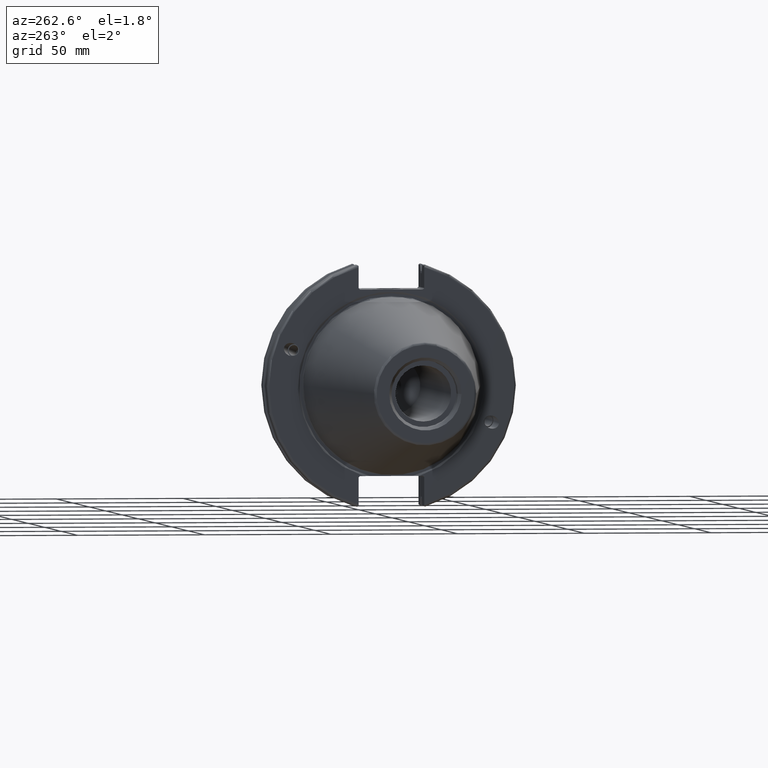
[diagram: clean part render]
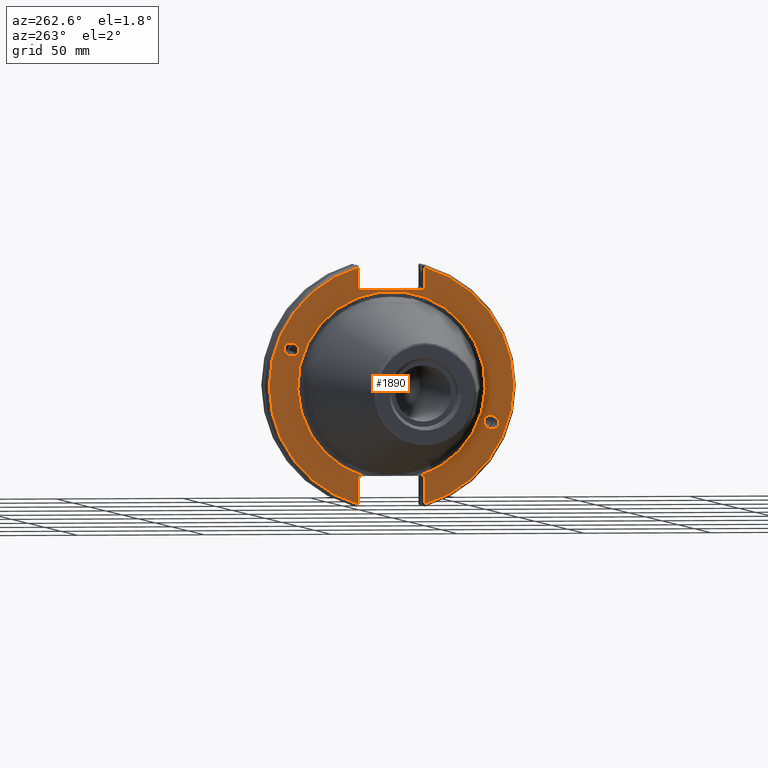
[diagram: same view with one face highlighted and labeled with its STEP entity id]
A machine part, auxiliary view. The second image highlights one B-rep face of the part: STEP entity #1890.
In plain terms, the highlighted planar face has unit normal (-1, 0, 0).
Its self-contained STEP definition (entity closure, byte-faithful):
#33=ELLIPSE('',#2065,3.05193647190365,2.50000000000001);
#34=ELLIPSE('',#2100,3.05193647190365,2.50000000000001);
#53=PLANE('',#2123);
#103=FACE_BOUND('',#360,.T.);
#104=FACE_BOUND('',#361,.T.);
#241=FACE_OUTER_BOUND('',#359,.T.);
#359=EDGE_LOOP('',(#1614,#1615,#1616,#1617,#1618,#1619,#1620,#1621,#1622,
#1623,#1624,#1625,#1626,#1627));
#360=EDGE_LOOP('',(#1628));
#361=EDGE_LOOP('',(#1629));
#459=LINE('',#3542,#562);
#462=LINE('',#3592,#565);
#470=LINE('',#3628,#573);
#474=LINE('',#3696,#577);
#475=LINE('',#3698,#578);
#476=LINE('',#3700,#579);
#477=LINE('',#3701,#580);
#478=LINE('',#3703,#581);
#479=LINE('',#3705,#582);
#480=LINE('',#3709,#583);
#481=LINE('',#3710,#584);
#562=VECTOR('',#2561,10.);
#565=VECTOR('',#2570,10.);
#573=VECTOR('',#2580,10.);
#577=VECTOR('',#2606,10.);
#578=VECTOR('',#2607,10.);
#579=VECTOR('',#2608,10.);
#580=VECTOR('',#2609,10.);
#581=VECTOR('',#2610,10.);
#582=VECTOR('',#2611,10.);
#583=VECTOR('',#2614,10.);
#584=VECTOR('',#2615,10.);
#706=CIRCLE('',#2115,48.2125);
#709=CIRCLE('',#2122,48.2125);
#710=CIRCLE('',#2124,37.);
#825=VERTEX_POINT('',#3221);
#864=VERTEX_POINT('',#3485);
#873=VERTEX_POINT('',#3539);
#874=VERTEX_POINT('',#3541);
#880=VERTEX_POINT('',#3589);
#881=VERTEX_POINT('',#3591);
#889=VERTEX_POINT('',#3620);
#890=VERTEX_POINT('',#3627);
#898=VERTEX_POINT('',#3686);
#899=VERTEX_POINT('',#3695);
#900=VERTEX_POINT('',#3697);
#901=VERTEX_POINT('',#3699);
#902=VERTEX_POINT('',#3702);
#903=VERTEX_POINT('',#3704);
#904=VERTEX_POINT('',#3706);
#905=VERTEX_POINT('',#3708);
#1052=EDGE_CURVE('',#825,#825,#33,.T.);
#1105=EDGE_CURVE('',#864,#864,#34,.T.);
#1119=EDGE_CURVE('',#874,#873,#459,.T.);
#1129=EDGE_CURVE('',#881,#880,#462,.T.);
#1141=EDGE_CURVE('',#890,#889,#470,.T.);
#1146=EDGE_CURVE('',#881,#889,#706,.T.);
#1155=EDGE_CURVE('',#874,#898,#709,.T.);
#1157=EDGE_CURVE('',#899,#880,#474,.T.);
#1158=EDGE_CURVE('',#899,#900,#475,.T.);
#1159=EDGE_CURVE('',#901,#900,#476,.T.);
#1160=EDGE_CURVE('',#901,#898,#477,.T.);
#1161=EDGE_CURVE('',#902,#873,#478,.T.);
#1162=EDGE_CURVE('',#902,#903,#479,.T.);
#1163=EDGE_CURVE('',#903,#904,#710,.T.);
#1164=EDGE_CURVE('',#904,#905,#480,.T.);
#1165=EDGE_CURVE('',#890,#905,#481,.T.);
#1614=ORIENTED_EDGE('',*,*,#1146,.F.);
#1615=ORIENTED_EDGE('',*,*,#1129,.T.);
#1616=ORIENTED_EDGE('',*,*,#1157,.F.);
#1617=ORIENTED_EDGE('',*,*,#1158,.T.);
#1618=ORIENTED_EDGE('',*,*,#1159,.F.);
#1619=ORIENTED_EDGE('',*,*,#1160,.T.);
#1620=ORIENTED_EDGE('',*,*,#1155,.F.);
#1621=ORIENTED_EDGE('',*,*,#1119,.T.);
#1622=ORIENTED_EDGE('',*,*,#1161,.F.);
#1623=ORIENTED_EDGE('',*,*,#1162,.T.);
#1624=ORIENTED_EDGE('',*,*,#1163,.T.);
#1625=ORIENTED_EDGE('',*,*,#1164,.T.);
#1626=ORIENTED_EDGE('',*,*,#1165,.F.);
#1627=ORIENTED_EDGE('',*,*,#1141,.T.);
#1628=ORIENTED_EDGE('',*,*,#1052,.T.);
#1629=ORIENTED_EDGE('',*,*,#1105,.T.);
#1890=ADVANCED_FACE('',(#241,#103,#104),#53,.T.);
#2065=AXIS2_PLACEMENT_3D('',#3223,#2452,#2453);
#2100=AXIS2_PLACEMENT_3D('',#3487,#2538,#2539);
#2115=AXIS2_PLACEMENT_3D('',#3650,#2586,#2587);
#2122=AXIS2_PLACEMENT_3D('',#3687,#2602,#2603);
#2123=AXIS2_PLACEMENT_3D('',#3694,#2604,#2605);
#2124=AXIS2_PLACEMENT_3D('',#3707,#2612,#2613);
#2452=DIRECTION('center_axis',(1.,0.,0.));
#2453=DIRECTION('ref_axis',(0.,-0.939692620785909,-0.342020143325667));
#2538=DIRECTION('center_axis',(1.,0.,0.));
#2539=DIRECTION('ref_axis',(0.,0.939692620785909,0.342020143325667));
#2561=DIRECTION('',(0.,0.,1.));
#2570=DIRECTION('',(0.,0.,-1.));
#2580=DIRECTION('',(0.,0.,-1.));
#2586=DIRECTION('center_axis',(1.,0.,0.));
#2587=DIRECTION('ref_axis',(0.,-1.,1.60812264967664E-16));
#2602=DIRECTION('center_axis',(1.,0.,0.));
#2603=DIRECTION('ref_axis',(0.,1.,-6.12323399573677E-17));
#2604=DIRECTION('center_axis',(-1.,0.,0.));
#2605=DIRECTION('ref_axis',(0.,0.,1.));
#2606=DIRECTION('',(0.,-0.707106781186549,0.707106781186546));
#2607=DIRECTION('',(0.,1.,0.));
#2608=DIRECTION('',(0.,-0.707106781186549,-0.707106781186546));
#2609=DIRECTION('',(0.,0.,1.));
#2610=DIRECTION('',(0.,0.707106781186548,-0.707106781186548));
#2611=DIRECTION('',(0.,-1.,0.));
#2612=DIRECTION('center_axis',(1.,0.,0.));
#2613=DIRECTION('ref_axis',(0.,0.,-1.));
#2614=DIRECTION('',(0.,-1.,0.));
#2615=DIRECTION('',(0.,0.707106781186549,0.707106781186546));
#3221=CARTESIAN_POINT('',(1.5,-36.5992078912529,-13.3210222701368));
#3223=CARTESIAN_POINT('Origin',(1.5,-39.4670900730082,-14.3648460196781));
#3485=CARTESIAN_POINT('',(1.5,36.5992078912529,13.3210222701368));
#3487=CARTESIAN_POINT('Origin',(1.5,39.4670900730082,14.3648460196781));
#3539=CARTESIAN_POINT('',(1.5,12.95,-35.806));
#3541=CARTESIAN_POINT('',(1.5,12.95,-46.4407434937254));
#3542=CARTESIAN_POINT('',(1.5,12.95,-17.653));
#3589=CARTESIAN_POINT('',(1.5,-12.95,38.219));
#3591=CARTESIAN_POINT('',(1.5,-12.95,46.4407434937254));
#3592=CARTESIAN_POINT('',(1.5,-12.95,18.8595));
#3620=CARTESIAN_POINT('',(1.5,-12.95,-46.4407434937254));
#3627=CARTESIAN_POINT('',(1.5,-12.95,-35.806));
#3628=CARTESIAN_POINT('',(1.5,-12.95,-17.653));
#3650=CARTESIAN_POINT('Origin',(1.5,0.,0.));
#3686=CARTESIAN_POINT('',(1.5,12.95,46.4407434937254));
#3687=CARTESIAN_POINT('Origin',(1.5,0.,0.));
#3694=CARTESIAN_POINT('Origin',(1.5,49.2125,0.));
#3695=CARTESIAN_POINT('',(1.5,-12.45,37.719));
#3696=CARTESIAN_POINT('',(1.5,12.2703750000001,12.998625));
#3697=CARTESIAN_POINT('',(1.5,12.45,37.719));
#3698=CARTESIAN_POINT('',(1.5,24.60625,37.719));
#3699=CARTESIAN_POINT('',(1.5,12.95,38.219));
#3700=CARTESIAN_POINT('',(1.5,12.335875,37.604875));
#3701=CARTESIAN_POINT('',(1.5,12.95,18.8595));
#3702=CARTESIAN_POINT('',(1.5,12.45,-35.306));
#3703=CARTESIAN_POINT('',(1.5,12.939125,-35.795125));
#3704=CARTESIAN_POINT('',(1.49999999999999,11.0673557817575,-35.306));
#3705=CARTESIAN_POINT('',(1.5,24.60625,-35.306));
#3706=CARTESIAN_POINT('',(1.5,-11.0673557817575,-35.306));
#3707=CARTESIAN_POINT('Origin',(1.5,0.,0.));
#3708=CARTESIAN_POINT('',(1.5,-12.45,-35.306));
#3709=CARTESIAN_POINT('',(1.5,24.60625,-35.306));
#3710=CARTESIAN_POINT('',(1.5,11.6671250000001,-11.188875));